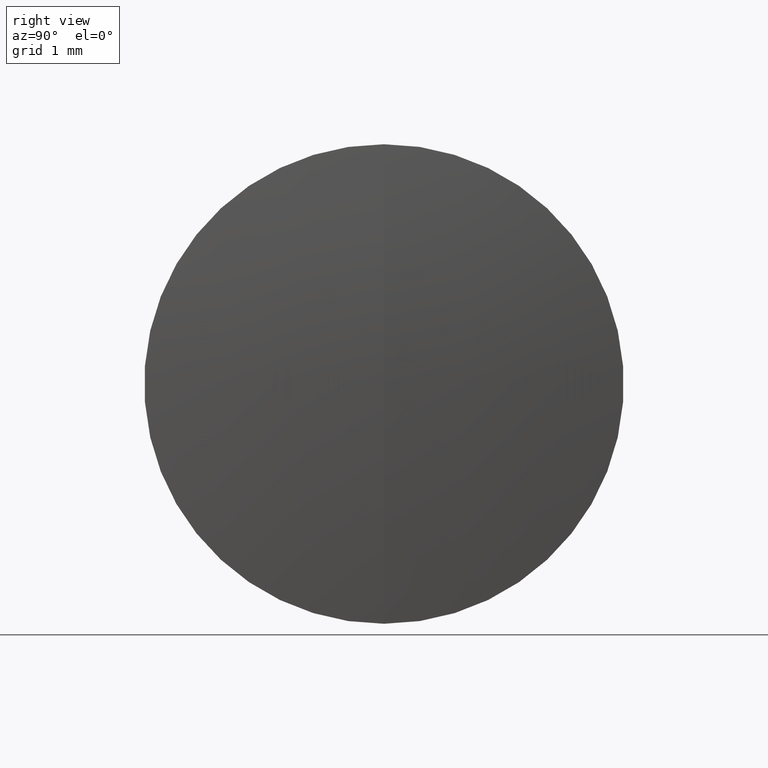
[diagram: clean part render]
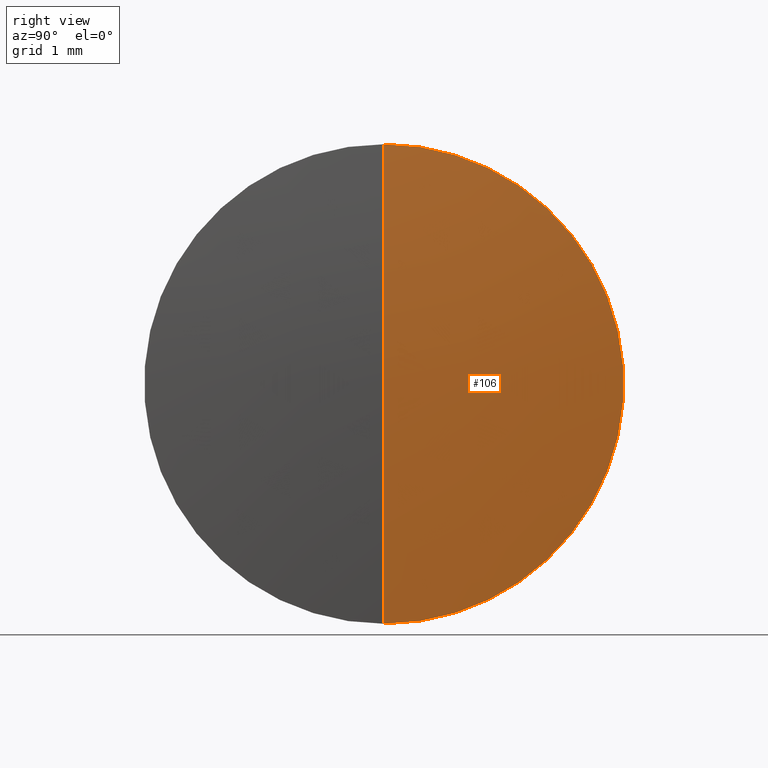
[diagram: same view with one face highlighted and labeled with its STEP entity id]
A machine part, right view. The second image highlights one B-rep face of the part: STEP entity #106.
In plain terms, the highlighted spherical surface has radius 30.759 mm.
Its self-contained STEP definition (entity closure, byte-faithful):
#10 = ORIENTED_EDGE ( 'NONE', *, *, #119, .F. ) ;
#27 = AXIS2_PLACEMENT_3D ( 'NONE', #261, #91, #283 ) ;
#32 = DIRECTION ( 'NONE',  ( -1.000000000000000000, -0.0000000000000000000, -0.0000000000000000000 ) ) ;
#36 = DIRECTION ( 'NONE',  ( 0.0000000000000000000, -1.000000000000000000, 0.0000000000000000000 ) ) ;
#43 = VERTEX_POINT ( 'NONE', #104 ) ;
#53 = AXIS2_PLACEMENT_3D ( 'NONE', #62, #330, #59 ) ;
#59 = DIRECTION ( 'NONE',  ( 0.0000000000000000000, 0.0000000000000000000, 1.000000000000000000 ) ) ;
#61 = VERTEX_POINT ( 'NONE', #274 ) ;
#62 = CARTESIAN_POINT ( 'NONE',  ( -20.28640629775840400, 0.0000000000000000000, 0.0000000000000000000 ) ) ;
#85 = EDGE_CURVE ( 'NONE', #157, #61, #220, .T. ) ;
#91 = DIRECTION ( 'NONE',  ( -0.0000000000000000000, 1.000000000000000000, 1.224646799147353200E-016 ) ) ;
#104 = CARTESIAN_POINT ( 'NONE',  ( 10.31087431670144000, 3.857637417314154800E-016, -3.149999999999993700 ) ) ;
#106 = ADVANCED_FACE ( 'NONE', ( #254 ), #262, .T. ) ;
#119 = EDGE_CURVE ( 'NONE', #61, #43, #247, .T. ) ;
#147 = AXIS2_PLACEMENT_3D ( 'NONE', #288, #32, #252 ) ;
#157 = VERTEX_POINT ( 'NONE', #219 ) ;
#176 = CARTESIAN_POINT ( 'NONE',  ( -20.28640629775840400, 0.0000000000000000000, 0.0000000000000000000 ) ) ;
#178 = DIRECTION ( 'NONE',  ( 0.0000000000000000000, 0.0000000000000000000, -1.000000000000000000 ) ) ;
#181 = CIRCLE ( 'NONE', #27, 30.75900000000000400 ) ;
#183 = ORIENTED_EDGE ( 'NONE', *, *, #85, .F. ) ;
#219 = CARTESIAN_POINT ( 'NONE',  ( 10.47259370224160000, 0.0000000000000000000, 1.883445544748672300E-015 ) ) ;
#220 = CIRCLE ( 'NONE', #319, 30.75900000000000400 ) ;
#234 = EDGE_CURVE ( 'NONE', #157, #43, #181, .T. ) ;
#247 = CIRCLE ( 'NONE', #147, 3.149999999999993700 ) ;
#252 = DIRECTION ( 'NONE',  ( 0.0000000000000000000, 0.0000000000000000000, 1.000000000000000000 ) ) ;
#254 = FACE_OUTER_BOUND ( 'NONE', #315, .T. ) ;
#261 = CARTESIAN_POINT ( 'NONE',  ( -20.28640629775840400, 0.0000000000000000000, 0.0000000000000000000 ) ) ;
#262 = SPHERICAL_SURFACE ( 'NONE', #53, 30.75900000000000400 ) ;
#274 = CARTESIAN_POINT ( 'NONE',  ( 10.31087431670144000, 0.0000000000000000000, 3.149999999999993700 ) ) ;
#283 = DIRECTION ( 'NONE',  ( 0.0000000000000000000, -1.224646799147353500E-016, 1.000000000000000000 ) ) ;
#288 = CARTESIAN_POINT ( 'NONE',  ( 10.31087431670144000, 0.0000000000000000000, 0.0000000000000000000 ) ) ;
#297 = ORIENTED_EDGE ( 'NONE', *, *, #234, .T. ) ;
#315 = EDGE_LOOP ( 'NONE', ( #183, #297, #10 ) ) ;
#319 = AXIS2_PLACEMENT_3D ( 'NONE', #176, #36, #178 ) ;
#330 = DIRECTION ( 'NONE',  ( 0.0000000000000000000, 1.000000000000000000, 0.0000000000000000000 ) ) ;